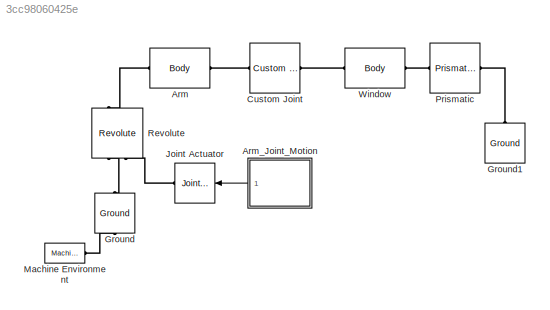
MODEL slx_3cc98060425e
KIND model
CONFIG PreLoadFcn = Arm_length = 0.5;
BLOCK [Reference] Arm  REF=mblibv1/Bodies/Body
  AttachedToCS = CG
  BodyColor = [1 0 0]
  BodyColorSelMode = MACHINE_DEFAULT
  CG = Left$CG$[Arm_length/2 0 0]$CS1$CS1$m$[0 0 0]$Euler X-Y-Z$deg$WORLD$false
  CGPos = [Arm_length/2 0 0]
  CGRot = [0 0 0]
  CS0Pos = []
  CS0Rot = []
  CS10Pos = []
  CS10Rot = []
  CS11Pos = []
  CS11Rot = []
  CS12Pos = []
  CS12Rot = []
  CS13Pos = []
  CS13Rot = []
  CS14Pos = []
  CS14Rot = []
  CS15Pos = []
  CS15Rot = []
  CS16Pos = []
  CS16Rot = []
  CS17Pos = []
  CS17Rot = []
  CS18Pos = []
  CS18Rot = []
  CS19Pos = []
  CS19Rot = []
  CS1Pos = [0 0 0]
  CS1Rot = [0 0 0]
  CS20Pos = []
  CS20Rot = []
  CS2Pos = [Arm_length 0 0]
  CS2Rot = [0 0 0]
  CS3Pos = []
  CS3Rot = []
  CS4Pos = []
  CS4Rot = []
  CS5Pos = []
  CS5Rot = []
  CS6Pos = []
  CS6Rot = []
  CS7Pos = []
  CS7Rot = []
  CS8Pos = []
  CS8Rot = []
  CS9Pos = []
  CS9Rot = []
  ClassName = Body
  Density = 1
  DensityUnits = kg/m^3
  DensityUse = false
  DialogClass = MechanicalBodyBlock
  GraphicsMode = MACHINE_DEFAULT
  Inertia = eye(3)
  InertiaUnits = kg*m^2
  LConnTagsString = CS1
  Mass = 1
  MassUnits = kg
  Ports = [0, 0, 0, 0, 0, 1, 1]
  RConnTagsString = CS2
  Shape = Cylinder
  ShapeDims = [1 1]
  ShapeUnits = m
  ShapeUse = false
  SourceBlock = mblibv1/Bodies/Body
  SourceType = Body
  UpdateFromCAD = off
  WorkingFrames = Left$CS1$[0 0 0]$Adjoining$Adjoining$m$[0 0 0]$Euler X-Y-Z$deg$WORLD$true#Right$CS2$[Arm_length 0 0]$CS1$CS1$m$[0 0 0]$Euler X-Y-Z$deg$WORLD$true
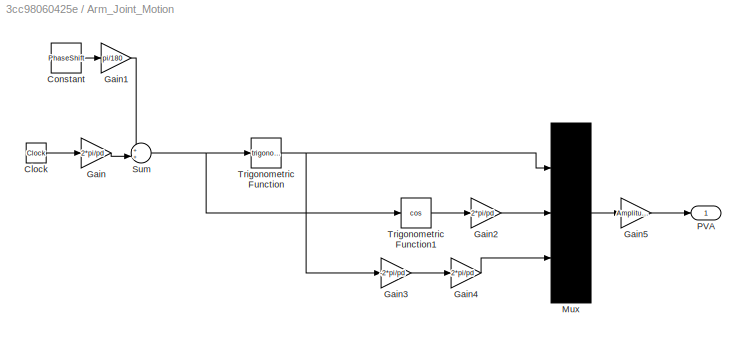
BLOCK [SubSystem] Arm_Joint_Motion
  FunctionWithSeparateData = off
  MaskHideContents = off
  MinAlgLoopOccurrences = off
  Opaque = off
  Ports = [0, 1]
  PropExecContextOutsideSubsystem = off
  RTWSystemCode = Auto
  RequestExecContextInheritance = off
BLOCK [Clock] Arm_Joint_Motion/Clock
BLOCK [Constant] Arm_Joint_Motion/Constant
  Value = PhaseShift
BLOCK [Gain] Arm_Joint_Motion/Gain
  Gain = 2*pi/pd
  OutDataTypeStr = Inherit: Inherit via internal rule
  ParamDataTypeStr = Inherit: Inherit via internal rule
  SaturateOnIntegerOverflow = off
BLOCK [Gain] Arm_Joint_Motion/Gain1
  Gain = pi/180
  OutDataTypeStr = Inherit: Inherit via internal rule
  ParamDataTypeStr = Inherit: Inherit via internal rule
  SaturateOnIntegerOverflow = off
BLOCK [Gain] Arm_Joint_Motion/Gain2
  Gain = 2*pi/pd
  OutDataTypeStr = Inherit: Inherit via internal rule
  ParamDataTypeStr = Inherit: Inherit via internal rule
  SaturateOnIntegerOverflow = off
BLOCK [Gain] Arm_Joint_Motion/Gain3
  Gain = -2*pi/pd
  OutDataTypeStr = Inherit: Inherit via internal rule
  ParamDataTypeStr = Inherit: Inherit via internal rule
  SaturateOnIntegerOverflow = off
BLOCK [Gain] Arm_Joint_Motion/Gain4
  Gain = 2*pi/pd
  OutDataTypeStr = Inherit: Inherit via internal rule
  ParamDataTypeStr = Inherit: Inherit via internal rule
  SaturateOnIntegerOverflow = off
BLOCK [Gain] Arm_Joint_Motion/Gain5
  Gain = Amplitude
  OutDataTypeStr = Inherit: Inherit via internal rule
  ParamDataTypeStr = Inherit: Inherit via internal rule
  SaturateOnIntegerOverflow = off
BLOCK [Mux] Arm_Joint_Motion/Mux
  DisplayOption = bar
  Inputs = 3
  Ports = [3, 1]
BLOCK [Outport] Arm_Joint_Motion/PVA
  IconDisplay = Port number
BLOCK [Sum] Arm_Joint_Motion/Sum
  IconShape = round
  InputSameDT = off
  Inputs = ++|
  OutDataTypeStr = Inherit: Inherit via internal rule
  Ports = [2, 1]
  SaturateOnIntegerOverflow = off
BLOCK [Trigonometry] Arm_Joint_Motion/Trigonometric Function
  Ports = [1, 1]
BLOCK [Trigonometry] Arm_Joint_Motion/Trigonometric Function1
  Operator = cos
  Ports = [1, 1]
BLOCK [Reference] Custom Joint  REF=mblibv1/Joints/Custom Joint
  ClassName = Joint
  CutJoint = off
  DialogClass = JointBlock
  LConnTagsString = __newl0
  MarkAsCut = off
  NumSAPorts = 0
  P1Axis = [1 0 0]
  P2Axis = []
  P3Axis = []
  Ports = [0, 0, 0, 0, 0, 1, 1]
  PrimitiveProps = R1$World$[0 0 1]$revolute#P1$World$[1 0 0]$Prismatic
  Primitives = prismatic
  R1Axis = [0 0 1]
  R2Axis = []
  R3Axis = []
  RConnTagsString = __newr0
  SAxis = []
  SourceBlock = mblibv1/Joints/Custom Joint
  SourceType = Custom Joint
  UpdateFromCAD = off
BLOCK [Reference] Ground  REF=mblibv1/Bodies/Ground
  ClassName = Ground
  CoordPosition = [0 0 0]
  CoordPositionUnits = m
  DialogClass = GroundBlock
  LeftPortType = env
  MachineId = [0 0]
  PhysicalDomain = Mechanical
  Ports = [0, 0, 0, 0, 0, 1, 1]
  RightPortType = workingframe
  ShowEnvPort = on
  SourceBlock = mblibv1/Bodies/Ground
  SourceType = Ground
  StateVectorMgrId = -1
  UpdateFromCAD = off
  UserDataPersistent = on
BLOCK [Reference] Ground1  REF=mblibv1/Bodies/Ground
  ClassName = Ground
  CoordPosition = [Arm_length/2 0 0]
  CoordPositionUnits = m
  DialogClass = GroundBlock
  LeftPortType = env
  MachineId = [0 0]
  PhysicalDomain = Mechanical
  Ports = [0, 0, 0, 0, 0, 0, 1]
  RightPortType = workingframe
  ShowEnvPort = off
  SourceBlock = mblibv1/Bodies/Ground
  SourceType = Ground
  StateVectorMgrId = -1
  UpdateFromCAD = off
  UserDataPersistent = on
BLOCK [Reference] Joint Actuator  REF=mblibv1/Sensors & 
Actuators/Joint Actuator
  AccelerationUnits = m/s^2
  ActiveIO = on
  ActuationStyle = Motion
  AngleUnits = deg
  ArcAccelerationUnits = deg/s^2
  ArcVelocityUnits = deg/s
  ClassName = JointActuator
  CoordPositionUnits = m
  DialogClass = MechanicalActuatorBlock
  ForceUnits = N
  PhysicalDomain = Mechanical
  PortType = blob
  Ports = [1, 0, 0, 0, 0, 0, 1]
  Primitive = R1
  ReferenceFrame = Absolute (World)
  SourceBlock = mblibv1/Sensors & \nActuators/Joint Actuator
  SourceType = Joint Actuator
  TorqueUnits = N*m
  UpdateFromCAD = off
  VelocityUnits = m/s
  Width = 3
BLOCK [Reference] Machine Environment  REF=mblibv1/Bodies/Machine
Environment
  AnalysisType = Forward dynamics
  AngularAssemblyTolerance = 1e-3
  AngularAssemblyToleranceUnits = rad
  BodyColorSelMode = Use model default
  BodyVisualizationType = Use model default body geometries
  ClassName = Environment
  ConstraintAbsTolerance = 1e-4
  ConstraintRelTolerance = 1e-4
  ConstraintSolverType = Stabilizing
  DefaultBodyColor = [1 0 0]
  DialogTemplateClass = MECH.MachineEnvironment
  Dimensionality = Auto-detect
  Gravity = [0 -9.81 0]
  GravityAsSignal = off
  GravityUnits = m/s^2
  LinearAssemblyTolerance = 1e-3
  LinearAssemblyToleranceUnits = m
  PerturbationSize = 1e-5
  PhysicalDomain = Mechanical
  PortType = env
  Ports = [0, 0, 0, 0, 0, 0, 1]
  RedundancyAnalysisTolerance = 1e-14
  RedundancyAnalysisToleranceType = Automatically select tolerance
  SourceBlock = mblibv1/Bodies/Machine\nEnvironment
  SourceType = Machine Environment
  StatePerturbationType = Fixed
  SyncWhenCopied = off
  Tag = Factory ground
  UseRobustSingularityHandling = off
  VisualizeMachine = on
BLOCK [Reference] Prismatic  REF=mblibv1/Joints/Prismatic
  ClassName = Joint
  CutJoint = off
  DialogClass = JointBlock
  LConnTagsString = __newl0
  MarkAsCut = off
  NumSAPorts = 0
  P1Axis = [0 1 0]
  Ports = [0, 0, 0, 0, 0, 1, 1]
  PrimitiveProps = P1$World$[0 1 0]$prismatic
  Primitives = prismatic
  RConnTagsString = __newr0
  SourceBlock = mblibv1/Joints/Prismatic
  SourceType = Prismatic
  UpdateFromCAD = off
BLOCK [Reference] Revolute  REF=mblibv1/Joints/Revolute
  ClassName = Joint
  CutJoint = off
  DialogClass = JointBlock
  LConnTagsString = __newl0|SA1
  MarkAsCut = off
  NumSAPorts = 2
  Ports = [0, 0, 0, 0, 0, 2, 2]
  PrimitiveProps = R1$World$[0 0 1]$revolute
  Primitives = prismatic
  R1Axis = [0 0 1]
  RConnTagsString = __newr0|SA1
  SourceBlock = mblibv1/Joints/Revolute
  SourceType = Revolute
  UpdateFromCAD = off
BLOCK [Reference] Window  REF=mblibv1/Bodies/Body
  AttachedToCS = CG
  BodyColor = [1 0 0]
  BodyColorSelMode = MACHINE_DEFAULT
  CG = Right$CG$[-Arm_length/2 0 0]$CS1$CS1$m$[0 0 0]$Euler X-Y-Z$deg$WORLD$true
  CGPos = [-Arm_length/2 0 0]
  CGRot = [0 0 0]
  CS0Pos = []
  CS0Rot = []
  CS10Pos = []
  CS10Rot = []
  CS11Pos = []
  CS11Rot = []
  CS12Pos = []
  CS12Rot = []
  CS13Pos = []
  CS13Rot = []
  CS14Pos = []
  CS14Rot = []
  CS15Pos = []
  CS15Rot = []
  CS16Pos = []
  CS16Rot = []
  CS17Pos = []
  CS17Rot = []
  CS18Pos = []
  CS18Rot = []
  CS19Pos = []
  CS19Rot = []
  CS1Pos = [0 0 0]
  CS1Rot = [0 0 0]
  CS20Pos = []
  CS20Rot = []
  CS2Pos = [-Arm_length 0 0]
  CS2Rot = [0 0 0]
  CS3Pos = []
  CS3Rot = []
  CS4Pos = []
  CS4Rot = []
  CS5Pos = []
  CS5Rot = []
  CS6Pos = []
  CS6Rot = []
  CS7Pos = []
  CS7Rot = []
  CS8Pos = []
  CS8Rot = []
  CS9Pos = []
  CS9Rot = []
  ClassName = Body
  Density = 1
  DensityUnits = kg/m^3
  DensityUse = false
  DialogClass = MechanicalBodyBlock
  GraphicsMode = MACHINE_DEFAULT
  Inertia = eye(3)
  InertiaUnits = kg*m^2
  LConnTagsString = CS1
  Mass = 1
  MassUnits = kg
  Ports = [0, 0, 0, 0, 0, 1, 1]
  RConnTagsString = CG
  Shape = Cylinder
  ShapeDims = [1 1]
  ShapeUnits = m
  ShapeUse = false
  SourceBlock = mblibv1/Bodies/Body
  SourceType = Body
  UpdateFromCAD = off
  WorkingFrames = Left$CS1$[0 0 0]$Adjoining$Adjoining$m$[0 0 0]$Euler X-Y-Z$deg$WORLD$true#Right$CS2$[-Arm_length 0 0]$CS1$CS1$m$[0 0 0]$Euler X-Y-Z$deg$WORLD$false
LINE Arm_Joint_Motion/Clock:1 -> Arm_Joint_Motion/Gain:1
LINE Arm_Joint_Motion/Constant:1 -> Arm_Joint_Motion/Gain1:1
LINE Arm_Joint_Motion/Gain1:1 -> Arm_Joint_Motion/Sum:1
LINE Arm_Joint_Motion/Gain2:1 -> Arm_Joint_Motion/Mux:2
LINE Arm_Joint_Motion/Gain3:1 -> Arm_Joint_Motion/Gain4:1
LINE Arm_Joint_Motion/Gain4:1 -> Arm_Joint_Motion/Mux:3
LINE Arm_Joint_Motion/Gain5:1 -> Arm_Joint_Motion/PVA:1
LINE Arm_Joint_Motion/Gain:1 -> Arm_Joint_Motion/Sum:2
LINE Arm_Joint_Motion/Mux:1 -> Arm_Joint_Motion/Gain5:1
NET Arm_Joint_Motion/Sum:1 -> Arm_Joint_Motion/Trigonometric Function1:1, Arm_Joint_Motion/Trigonometric Function:1
LINE Arm_Joint_Motion/Trigonometric Function1:1 -> Arm_Joint_Motion/Gain2:1
NET Arm_Joint_Motion/Trigonometric Function:1 -> Arm_Joint_Motion/Gain3:1, Arm_Joint_Motion/Mux:1
LINE Arm_Joint_Motion:1 -> Joint Actuator:1
PLINE Arm:LConn1 -- Revolute:RConn1
PLINE Arm:RConn1 -- Custom Joint:LConn1
PLINE Custom Joint:RConn1 -- Window:LConn1
PLINE Ground1:RConn1 -- Prismatic:RConn1
PLINE Ground:LConn1 -- Machine Environment:RConn1
PLINE Ground:RConn1 -- Revolute:LConn1
PLINE Joint Actuator:RConn1 -- Revolute:LConn2
PLINE Prismatic:LConn1 -- Window:RConn1
note: NET lines group one-source signal fan-out (src -> all destinations, sorted); 1:1 wires keep LINE
